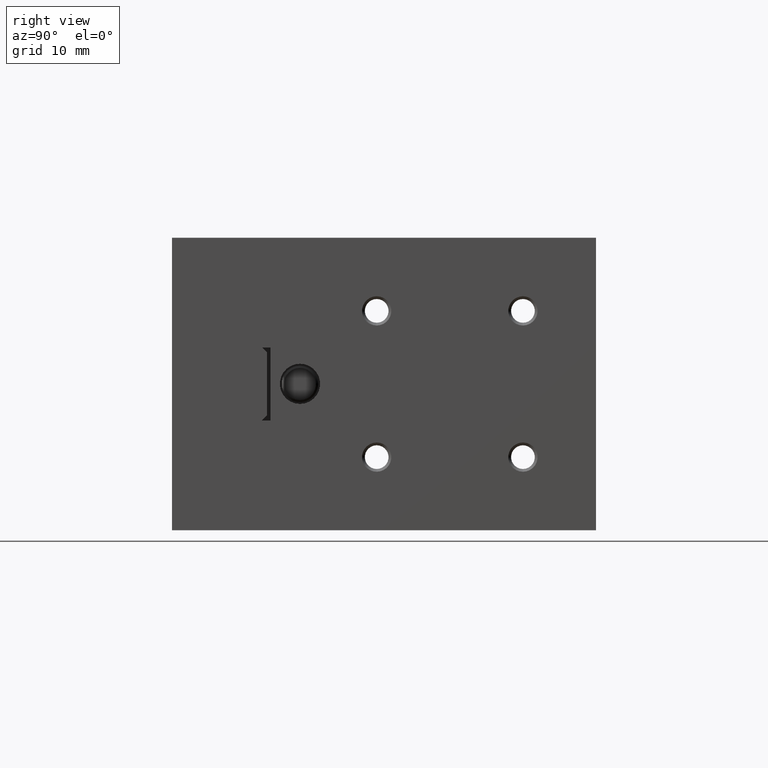
[diagram: clean part render]
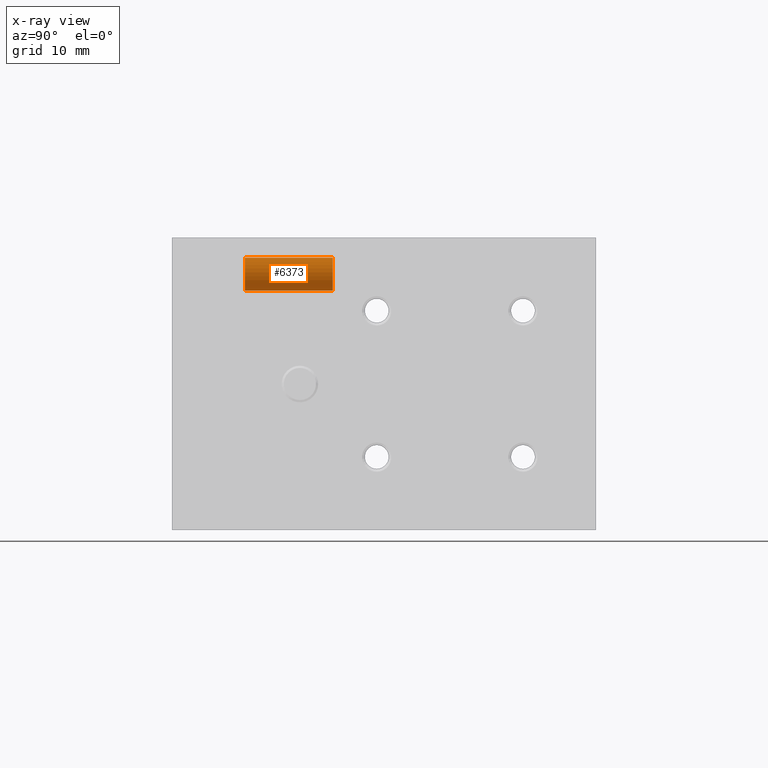
[diagram: x-ray — body ghosted, one internal face saturated and labeled with its STEP entity id]
A machine part, right view, then the same camera in x-ray: the body is ghosted and one INTERNAL B-rep face — a face not visible from any outside direction — is saturated and labeled: STEP entity #6373.
In plain terms, the highlighted cylindrical surface (edge-blend (fillet) strip) has radius 2.25 mm, axis along (0, -1, 0).
Its self-contained STEP definition (entity closure, byte-faithful):
#390 = FACE_OUTER_BOUND ( 'NONE', #8401, .T. ) ;
#1306 = AXIS2_PLACEMENT_3D ( 'NONE', #10443, #4495, #12645 ) ;
#1311 = DIRECTION ( 'NONE',  ( 0.000000000000000000, 0.000000000000000000, -1.000000000000000000 ) ) ;
#1480 = AXIS2_PLACEMENT_3D ( 'NONE', #9599, #8541, #1311 ) ;
#1833 = VERTEX_POINT ( 'NONE', #6900 ) ;
#2288 = CYLINDRICAL_SURFACE ( 'NONE', #1306, 2.250000000000000444 ) ;
#2725 = DIRECTION ( 'NONE',  ( 0.000000000000000000, -1.000000000000000000, 0.000000000000000000 ) ) ;
#3839 = ORIENTED_EDGE ( 'NONE', *, *, #8566, .F. ) ;
#4162 = ORIENTED_EDGE ( 'NONE', *, *, #4489, .T. ) ;
#4489 = EDGE_CURVE ( 'NONE', #1833, #8414, #11538, .T. ) ;
#4495 = DIRECTION ( 'NONE',  ( 0.000000000000000000, -1.000000000000000000, 0.000000000000000000 ) ) ;
#4606 = CARTESIAN_POINT ( 'NONE',  ( 38.00000000000000711, 22.00000000000000000, -2.749999999999997780 ) ) ;
#5545 = DIRECTION ( 'NONE',  ( -0.000000000000000000, -1.000000000000000000, -0.000000000000000000 ) ) ;
#5608 = AXIS2_PLACEMENT_3D ( 'NONE', #10676, #2725, #6630 ) ;
#6373 = ADVANCED_FACE ( 'NONE', ( #390 ), #2288, .F. ) ;
#6630 = DIRECTION ( 'NONE',  ( 0.000000000000000000, 0.000000000000000000, -1.000000000000000000 ) ) ;
#6900 = CARTESIAN_POINT ( 'NONE',  ( 38.00000000000000711, 10.00000000000000000, -7.249999999999999112 ) ) ;
#7103 = EDGE_CURVE ( 'NONE', #1833, #10171, #12042, .T. ) ;
#7961 = VERTEX_POINT ( 'NONE', #12266 ) ;
#8192 = CARTESIAN_POINT ( 'NONE',  ( 38.00000000000000711, 22.00000000000000000, -7.249999999999999112 ) ) ;
#8193 = ORIENTED_EDGE ( 'NONE', *, *, #7103, .F. ) ;
#8401 = EDGE_LOOP ( 'NONE', ( #9365, #3839, #8193, #4162 ) ) ;
#8414 = VERTEX_POINT ( 'NONE', #9434 ) ;
#8541 = DIRECTION ( 'NONE',  ( 0.000000000000000000, -1.000000000000000000, 0.000000000000000000 ) ) ;
#8566 = EDGE_CURVE ( 'NONE', #10171, #7961, #13094, .T. ) ;
#8682 = EDGE_CURVE ( 'NONE', #7961, #8414, #12968, .T. ) ;
#9166 = CARTESIAN_POINT ( 'NONE',  ( 38.00000000000000711, 22.00000000000000000, -7.250000000000000000 ) ) ;
#9365 = ORIENTED_EDGE ( 'NONE', *, *, #8682, .F. ) ;
#9434 = CARTESIAN_POINT ( 'NONE',  ( 38.00000000000000711, 10.00000000000000000, -2.749999999999998224 ) ) ;
#9599 = CARTESIAN_POINT ( 'NONE',  ( 38.00000000000000711, 10.00000000000000000, -5.000000000000000000 ) ) ;
#10055 = VECTOR ( 'NONE', #12246, 1000.000000000000000 ) ;
#10171 = VERTEX_POINT ( 'NONE', #8192 ) ;
#10443 = CARTESIAN_POINT ( 'NONE',  ( 38.00000000000000711, 22.00000000000000000, -5.000000000000000000 ) ) ;
#10676 = CARTESIAN_POINT ( 'NONE',  ( 38.00000000000000711, 22.00000000000000000, -5.000000000000000000 ) ) ;
#11538 = CIRCLE ( 'NONE', #1480, 2.250000000000000444 ) ;
#12042 = LINE ( 'NONE', #9166, #10055 ) ;
#12246 = DIRECTION ( 'NONE',  ( 0.000000000000000000, 1.000000000000000000, -0.000000000000000000 ) ) ;
#12266 = CARTESIAN_POINT ( 'NONE',  ( 38.00000000000000711, 22.00000000000000000, -2.749999999999998224 ) ) ;
#12645 = DIRECTION ( 'NONE',  ( 0.000000000000000000, 0.000000000000000000, -1.000000000000000000 ) ) ;
#12968 = LINE ( 'NONE', #4606, #13109 ) ;
#13094 = CIRCLE ( 'NONE', #5608, 2.250000000000000444 ) ;
#13109 = VECTOR ( 'NONE', #5545, 1000.000000000000000 ) ;